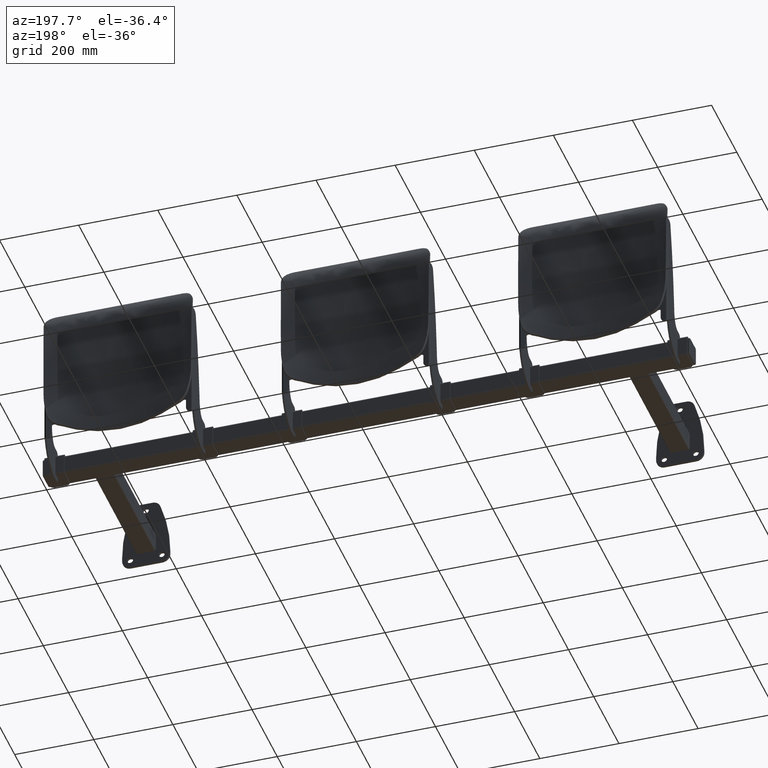
[diagram: clean part render]
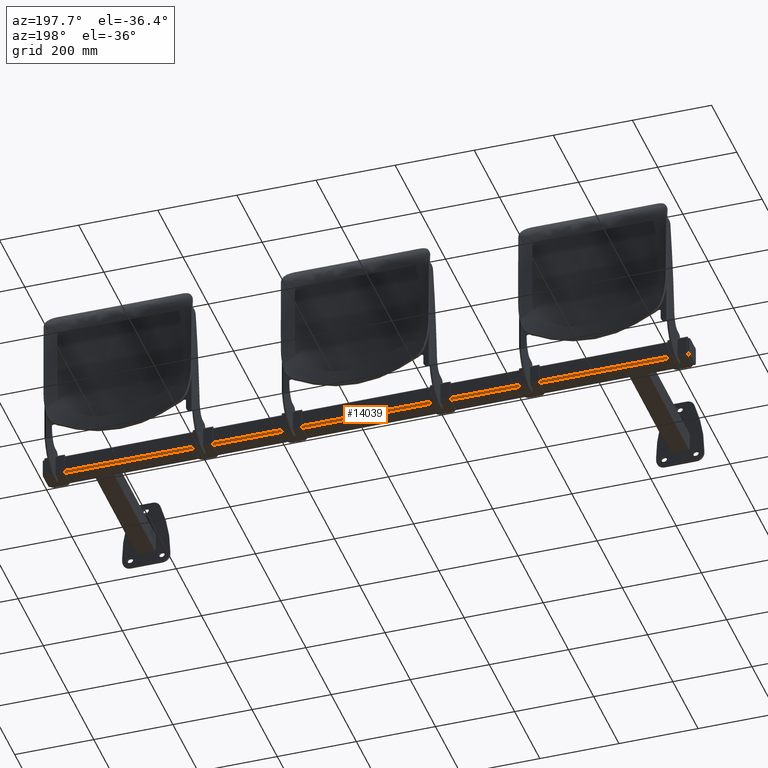
[diagram: same view with one face highlighted and labeled with its STEP entity id]
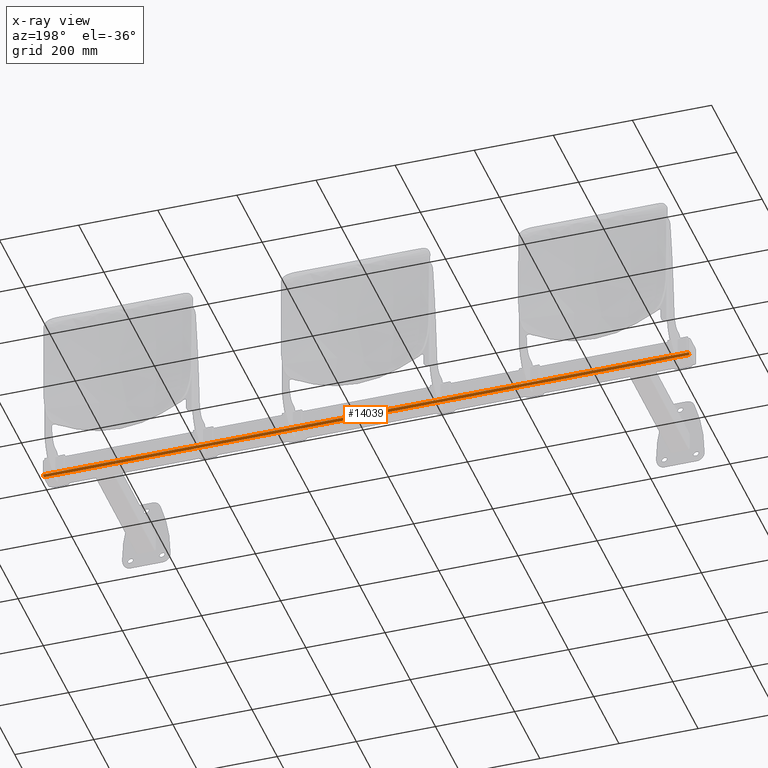
[diagram: x-ray of the same camera — body ghosted, the highlighted face saturated]
A machine part, auxiliary view. The second image highlights one B-rep face of the part: STEP entity #14039.
The next image is the same camera in x-ray: the body ghosted, the highlighted face saturated — about 0% of this face is hidden behind the body in this view.
In plain terms, the highlighted cylindrical surface (edge-blend (fillet) strip) has radius 5 mm, axis along (1, 0, 0).
Its self-contained STEP definition (entity closure, byte-faithful):
#998 = DIRECTION ( 'NONE',  ( 0.0000000000000000000, 0.0000000000000000000, -1.000000000000000000 ) ) ;
#999 = CARTESIAN_POINT ( 'NONE',  ( -818.0000000000000000, 371.0000000000000000, -19.99999999999999600 ) ) ;
#1000 = DIRECTION ( 'NONE',  ( 1.000000000000000000, 0.0000000000000000000, 0.0000000000000000000 ) ) ;
#3770 = ORIENTED_EDGE ( 'NONE', *, *, #13627, .F. ) ;
#3771 = ORIENTED_EDGE ( 'NONE', *, *, #6992, .T. ) ;
#3772 = ORIENTED_EDGE ( 'NONE', *, *, #13736, .F. ) ;
#3773 = ORIENTED_EDGE ( 'NONE', *, *, #6993, .T. ) ;
#4325 = AXIS2_PLACEMENT_3D ( 'NONE', #999, #1000, #998 ) ;
#4853 = CARTESIAN_POINT ( 'NONE',  ( -818.0000000000000000, 376.0000000000000000, -19.99999999999999600 ) ) ;
#4854 = DIRECTION ( 'NONE',  ( -1.000000000000000000, 0.0000000000000000000, 0.0000000000000000000 ) ) ;
#5349 = CIRCLE ( 'NONE', #15240, 5.000000000000000900 ) ;
#5366 = CIRCLE ( 'NONE', #15241, 5.000000000000000900 ) ;
#5911 = CARTESIAN_POINT ( 'NONE',  ( 816.0000000000000000, 371.0000000000000000, -19.99999999999999600 ) ) ;
#5912 = DIRECTION ( 'NONE',  ( -1.000000000000000000, 0.0000000000000000000, 0.0000000000000000000 ) ) ;
#5913 = DIRECTION ( 'NONE',  ( 0.0000000000000000000, 0.0000000000000000000, 1.000000000000000000 ) ) ;
#5915 = CARTESIAN_POINT ( 'NONE',  ( -816.0000000000000000, 371.0000000000000000, -19.99999999999999600 ) ) ;
#5916 = DIRECTION ( 'NONE',  ( 1.000000000000000000, 0.0000000000000000000, 0.0000000000000000000 ) ) ;
#5917 = DIRECTION ( 'NONE',  ( 0.0000000000000000000, 0.0000000000000000000, -1.000000000000000000 ) ) ;
#6146 = EDGE_LOOP ( 'NONE', ( #3770, #3771, #3772, #3773 ) ) ;
#6479 = CARTESIAN_POINT ( 'NONE',  ( 818.0000000000000000, 371.0000000000000000, -25.00000000000000000 ) ) ;
#6480 = DIRECTION ( 'NONE',  ( 1.000000000000000000, -0.0000000000000000000, -0.0000000000000000000 ) ) ;
#6992 = EDGE_CURVE ( 'NONE', #12476, #9052, #5349, .T. ) ;
#6993 = EDGE_CURVE ( 'NONE', #9042, #12472, #5366, .T. ) ;
#8467 = LINE ( 'NONE', #4853, #8470 ) ;
#8470 = VECTOR ( 'NONE', #4854, 1000.000000000000000 ) ;
#8590 = FACE_OUTER_BOUND ( 'NONE', #6146, .T. ) ;
#8595 = CYLINDRICAL_SURFACE ( 'NONE', #4325, 5.000000000000000900 ) ;
#9042 = VERTEX_POINT ( 'NONE', #9326 ) ;
#9052 = VERTEX_POINT ( 'NONE', #9336 ) ;
#9326 = CARTESIAN_POINT ( 'NONE',  ( -816.0000000000000000, 371.0000000000000000, -25.00000000000000000 ) ) ;
#9336 = CARTESIAN_POINT ( 'NONE',  ( 816.0000000000000000, 371.0000000000000000, -25.00000000000000000 ) ) ;
#9608 = CARTESIAN_POINT ( 'NONE',  ( -816.0000000000000000, 376.0000000000000000, -19.99999999999999600 ) ) ;
#9609 = CARTESIAN_POINT ( 'NONE',  ( 816.0000000000000000, 376.0000000000000000, -19.99999999999999600 ) ) ;
#12472 = VERTEX_POINT ( 'NONE', #9608 ) ;
#12476 = VERTEX_POINT ( 'NONE', #9609 ) ;
#13627 = EDGE_CURVE ( 'NONE', #12476, #12472, #8467, .T. ) ;
#13736 = EDGE_CURVE ( 'NONE', #9042, #9052, #14877, .T. ) ;
#14039 = ADVANCED_FACE ( 'NONE', ( #8590 ), #8595, .T. ) ;
#14877 = LINE ( 'NONE', #6479, #14879 ) ;
#14879 = VECTOR ( 'NONE', #6480, 1000.000000000000000 ) ;
#15240 = AXIS2_PLACEMENT_3D ( 'NONE', #5911, #5912, #5913 ) ;
#15241 = AXIS2_PLACEMENT_3D ( 'NONE', #5915, #5916, #5917 ) ;